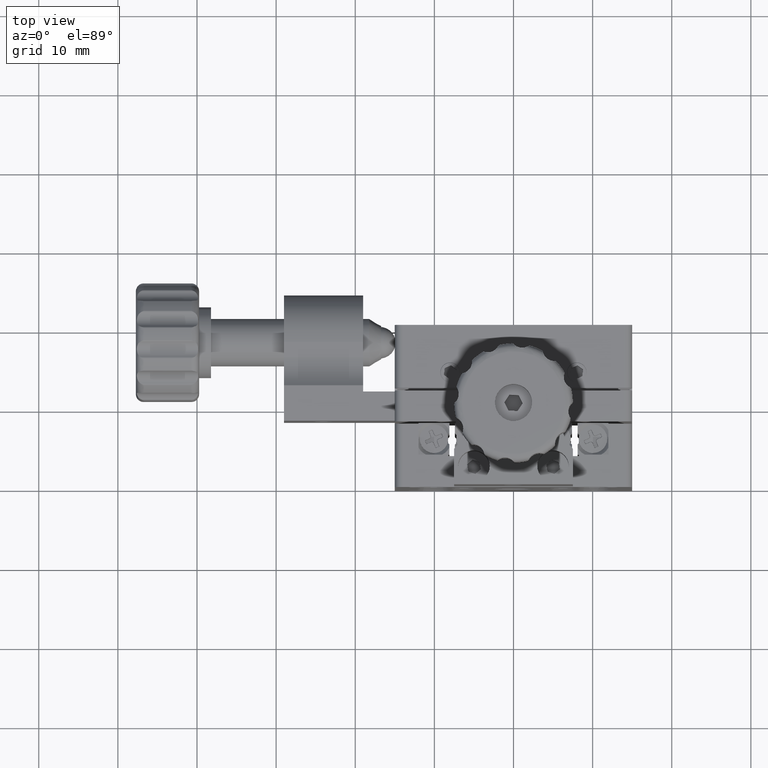
[diagram: clean part render]
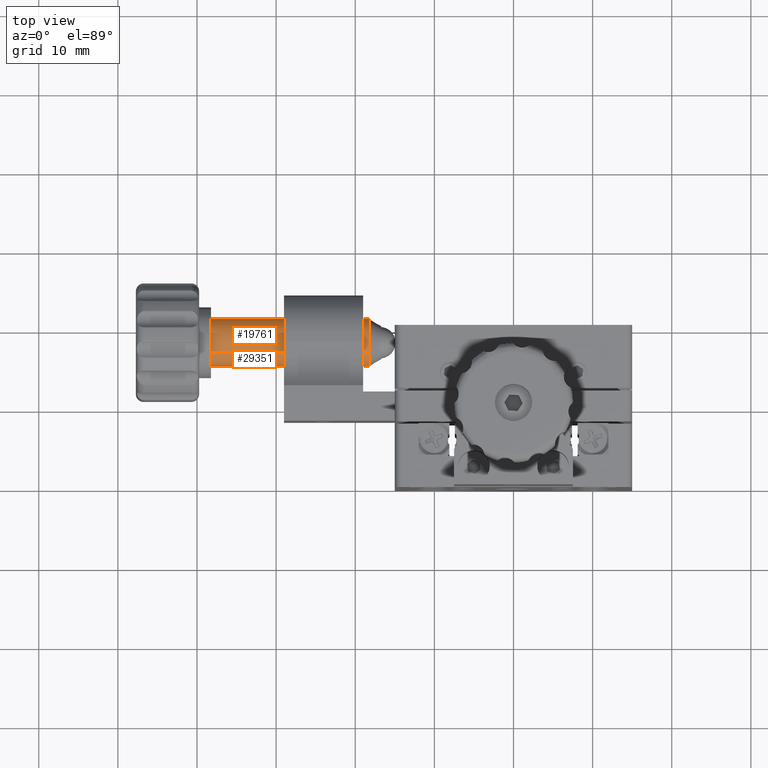
[diagram: same view with one multi-face feature highlighted, each face labeled with its STEP entity id]
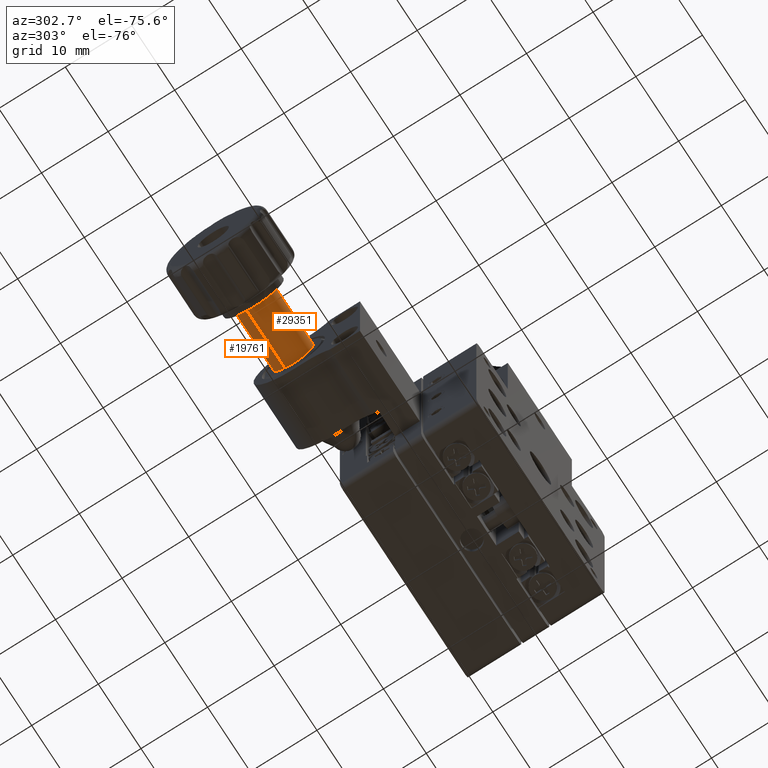
[diagram: same view with one multi-face feature highlighted, each face labeled with its STEP entity id]
A machine part, top view. The highlighted faces form ONE feature: a constant-radius fillet chain: 2 tangent blend faces with common blend radius 3 mm. The faces share edges in the B-rep.
A second angle (auxiliary view) of the same feature is appended — it is thin or edge-on in the first view.
Their STEP definitions:
[1] entity #29351 (Cylinder):
#1685 = VECTOR ( 'NONE', #6879, 1000.000000000000000 ) ;
#3444 = EDGE_CURVE ( 'NONE', #41016, #28169, #4232, .T. ) ;
#3944 = CARTESIAN_POINT ( 'NONE',  ( 14.55987785398317800, 18.50000000000000400, -2.710505431213761100E-015 ) ) ;
#3954 = AXIS2_PLACEMENT_3D ( 'NONE', #51444, #35421, #20074 ) ;
#4232 = LINE ( 'NONE', #20902, #12232 ) ;
#6879 = DIRECTION ( 'NONE',  ( 1.000000000000000000, 4.848437563841885400E-032, -2.494376194364420800E-031 ) ) ;
#7145 = ORIENTED_EDGE ( 'NONE', *, *, #27976, .T. ) ;
#8839 = DIRECTION ( 'NONE',  ( 0.0000000000000000000, 0.4231866274010626600, -0.9060425367436753000 ) ) ;
#10631 = EDGE_CURVE ( 'NONE', #22032, #19815, #46935, .T. ) ;
#10926 = AXIS2_PLACEMENT_3D ( 'NONE', #3944, #15610, #47452 ) ;
#11268 = EDGE_CURVE ( 'NONE', #19815, #28169, #35226, .T. ) ;
#11417 = ORIENTED_EDGE ( 'NONE', *, *, #10631, .F. ) ;
#12232 = VECTOR ( 'NONE', #12756, 1000.000000000000000 ) ;
#12756 = DIRECTION ( 'NONE',  ( 1.000000000000000000, 4.848437563841885400E-032, -2.494376194364420800E-031 ) ) ;
#15557 = ORIENTED_EDGE ( 'NONE', *, *, #3444, .T. ) ;
#15610 = DIRECTION ( 'NONE',  ( 1.000000000000000000, 4.848437563841885400E-032, -2.494376194364420800E-031 ) ) ;
#16527 = CARTESIAN_POINT ( 'NONE',  ( -45.22923949807299200, 18.50000000000000400, -2.710505431213761100E-015 ) ) ;
#16800 = CIRCLE ( 'NONE', #21877, 3.000000000000001800 ) ;
#17300 = CYLINDRICAL_SURFACE ( 'NONE', #10926, 3.000000000000001800 ) ;
#19815 = VERTEX_POINT ( 'NONE', #35348 ) ;
#20074 = DIRECTION ( 'NONE',  ( 0.0000000000000000000, 0.4231866274010635500, -0.9060425367436747400 ) ) ;
#20480 = DIRECTION ( 'NONE',  ( 1.000000000000000000, 4.848437563841885400E-032, -2.494376194364420800E-031 ) ) ;
#20902 = CARTESIAN_POINT ( 'NONE',  ( 14.55987785398317800, 19.76955988220319000, -2.718127610231030100 ) ) ;
#21877 = AXIS2_PLACEMENT_3D ( 'NONE', #16527, #20480, #8839 ) ;
#22032 = VERTEX_POINT ( 'NONE', #40116 ) ;
#23206 = CARTESIAN_POINT ( 'NONE',  ( 14.55987785398317800, 17.23044011779681400, 2.718127610231024800 ) ) ;
#26046 = EDGE_LOOP ( 'NONE', ( #11417, #7145, #15557, #27393 ) ) ;
#27393 = ORIENTED_EDGE ( 'NONE', *, *, #11268, .F. ) ;
#27976 = EDGE_CURVE ( 'NONE', #22032, #41016, #16800, .T. ) ;
#28169 = VERTEX_POINT ( 'NONE', #50179 ) ;
#29351 = ADVANCED_FACE ( 'NONE', ( #40778 ), #17300, .T. ) ;
#32438 = CARTESIAN_POINT ( 'NONE',  ( -45.22923949807299200, 19.76955988220319000, -2.718127610231030100 ) ) ;
#35226 = CIRCLE ( 'NONE', #3954, 3.000000000000004000 ) ;
#35348 = CARTESIAN_POINT ( 'NONE',  ( -18.22923949807298900, 17.23044011779681000, 2.718127610231025200 ) ) ;
#35421 = DIRECTION ( 'NONE',  ( 1.000000000000000000, 4.848437563841885400E-032, -2.494376194364420800E-031 ) ) ;
#40116 = CARTESIAN_POINT ( 'NONE',  ( -45.22923949807299200, 17.23044011779681400, 2.718127610231022600 ) ) ;
#40778 = FACE_OUTER_BOUND ( 'NONE', #26046, .T. ) ;
#41016 = VERTEX_POINT ( 'NONE', #32438 ) ;
#46935 = LINE ( 'NONE', #23206, #1685 ) ;
#47452 = DIRECTION ( 'NONE',  ( 0.0000000000000000000, 0.4231866274010626600, -0.9060425367436753000 ) ) ;
#50179 = CARTESIAN_POINT ( 'NONE',  ( -18.22923949807298900, 19.76955988220319300, -2.718127610231030600 ) ) ;
#51444 = CARTESIAN_POINT ( 'NONE',  ( -18.22923949807298900, 18.50000000000000400, -2.710505431213761100E-015 ) ) ;
[2] entity #19761 (Cylinder):
#1685 = VECTOR ( 'NONE', #6879, 1000.000000000000000 ) ;
#3444 = EDGE_CURVE ( 'NONE', #41016, #28169, #4232, .T. ) ;
#3466 = DIRECTION ( 'NONE',  ( 0.0000000000000000000, 0.4231866274010635500, -0.9060425367436747400 ) ) ;
#4232 = LINE ( 'NONE', #20902, #12232 ) ;
#6230 = CARTESIAN_POINT ( 'NONE',  ( -18.22923949807298900, 18.50000000000000400, -2.710505431213761100E-015 ) ) ;
#6522 = ORIENTED_EDGE ( 'NONE', *, *, #51068, .F. ) ;
#6879 = DIRECTION ( 'NONE',  ( 1.000000000000000000, 4.848437563841885400E-032, -2.494376194364420800E-031 ) ) ;
#7320 = CARTESIAN_POINT ( 'NONE',  ( 14.55987785398317800, 18.50000000000000400, -2.710505431213761100E-015 ) ) ;
#9528 = CIRCLE ( 'NONE', #36874, 3.000000000000001800 ) ;
#10631 = EDGE_CURVE ( 'NONE', #22032, #19815, #46935, .T. ) ;
#12232 = VECTOR ( 'NONE', #12756, 1000.000000000000000 ) ;
#12273 = FACE_OUTER_BOUND ( 'NONE', #30925, .T. ) ;
#12756 = DIRECTION ( 'NONE',  ( 1.000000000000000000, 4.848437563841885400E-032, -2.494376194364420800E-031 ) ) ;
#19231 = AXIS2_PLACEMENT_3D ( 'NONE', #7320, #19312, #43513 ) ;
#19312 = DIRECTION ( 'NONE',  ( 1.000000000000000000, 4.848437563841885400E-032, -2.494376194364420800E-031 ) ) ;
#19544 = DIRECTION ( 'NONE',  ( 1.000000000000000000, 4.848437563841885400E-032, -2.494376194364420800E-031 ) ) ;
#19761 = ADVANCED_FACE ( 'NONE', ( #12273 ), #20354, .T. ) ;
#19815 = VERTEX_POINT ( 'NONE', #35348 ) ;
#20164 = ORIENTED_EDGE ( 'NONE', *, *, #10631, .T. ) ;
#20354 = CYLINDRICAL_SURFACE ( 'NONE', #19231, 3.000000000000001800 ) ;
#20902 = CARTESIAN_POINT ( 'NONE',  ( 14.55987785398317800, 19.76955988220319000, -2.718127610231030100 ) ) ;
#21895 = EDGE_CURVE ( 'NONE', #41016, #22032, #9528, .T. ) ;
#22032 = VERTEX_POINT ( 'NONE', #40116 ) ;
#23178 = DIRECTION ( 'NONE',  ( 0.0000000000000000000, 0.4231866274010626600, -0.9060425367436753000 ) ) ;
#23206 = CARTESIAN_POINT ( 'NONE',  ( 14.55987785398317800, 17.23044011779681400, 2.718127610231024800 ) ) ;
#26601 = AXIS2_PLACEMENT_3D ( 'NONE', #6230, #37936, #3466 ) ;
#28169 = VERTEX_POINT ( 'NONE', #50179 ) ;
#30522 = ORIENTED_EDGE ( 'NONE', *, *, #21895, .T. ) ;
#30925 = EDGE_LOOP ( 'NONE', ( #30522, #20164, #6522, #49227 ) ) ;
#32438 = CARTESIAN_POINT ( 'NONE',  ( -45.22923949807299200, 19.76955988220319000, -2.718127610231030100 ) ) ;
#35348 = CARTESIAN_POINT ( 'NONE',  ( -18.22923949807298900, 17.23044011779681000, 2.718127610231025200 ) ) ;
#36874 = AXIS2_PLACEMENT_3D ( 'NONE', #39052, #19544, #23178 ) ;
#37936 = DIRECTION ( 'NONE',  ( 1.000000000000000000, 4.848437563841885400E-032, -2.494376194364420800E-031 ) ) ;
#39052 = CARTESIAN_POINT ( 'NONE',  ( -45.22923949807299200, 18.50000000000000400, -2.710505431213761100E-015 ) ) ;
#40116 = CARTESIAN_POINT ( 'NONE',  ( -45.22923949807299200, 17.23044011779681400, 2.718127610231022600 ) ) ;
#41016 = VERTEX_POINT ( 'NONE', #32438 ) ;
#43205 = CIRCLE ( 'NONE', #26601, 3.000000000000004000 ) ;
#43513 = DIRECTION ( 'NONE',  ( 0.0000000000000000000, 0.4231866274010626600, -0.9060425367436753000 ) ) ;
#46935 = LINE ( 'NONE', #23206, #1685 ) ;
#49227 = ORIENTED_EDGE ( 'NONE', *, *, #3444, .F. ) ;
#50179 = CARTESIAN_POINT ( 'NONE',  ( -18.22923949807298900, 19.76955988220319300, -2.718127610231030600 ) ) ;
#51068 = EDGE_CURVE ( 'NONE', #28169, #19815, #43205, .T. ) ;